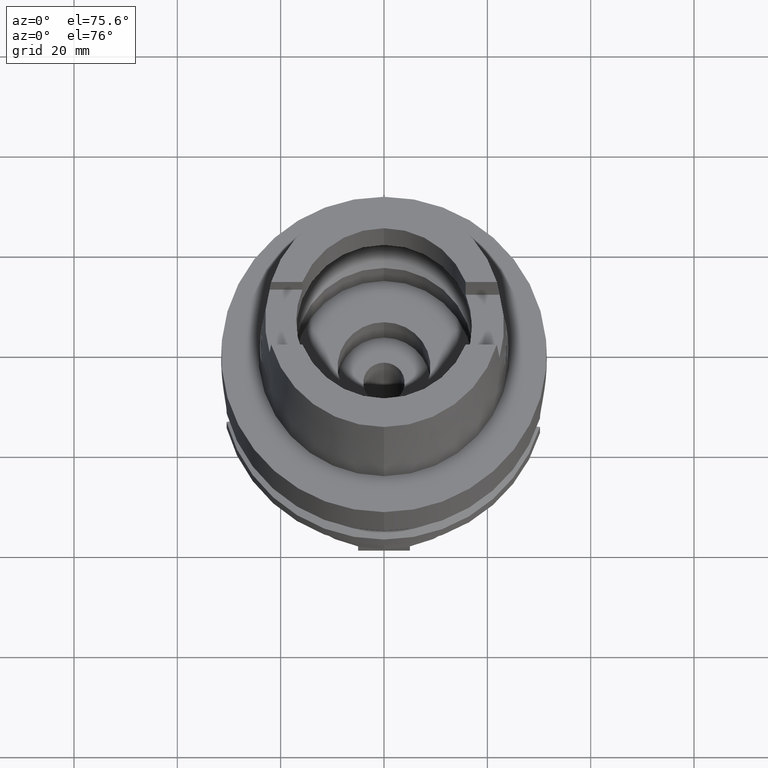
[diagram: clean part render]
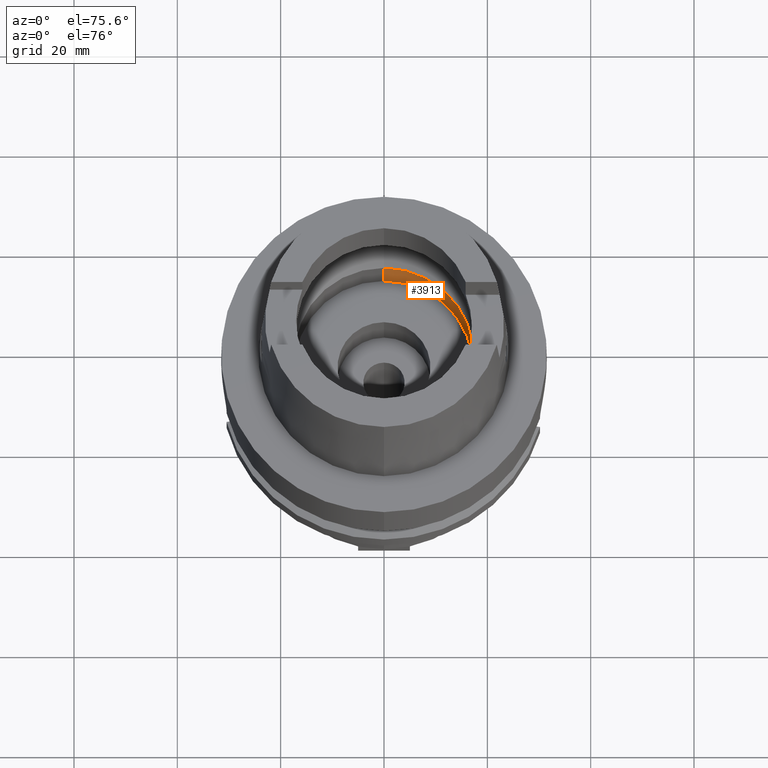
[diagram: same view with one face highlighted and labeled with its STEP entity id]
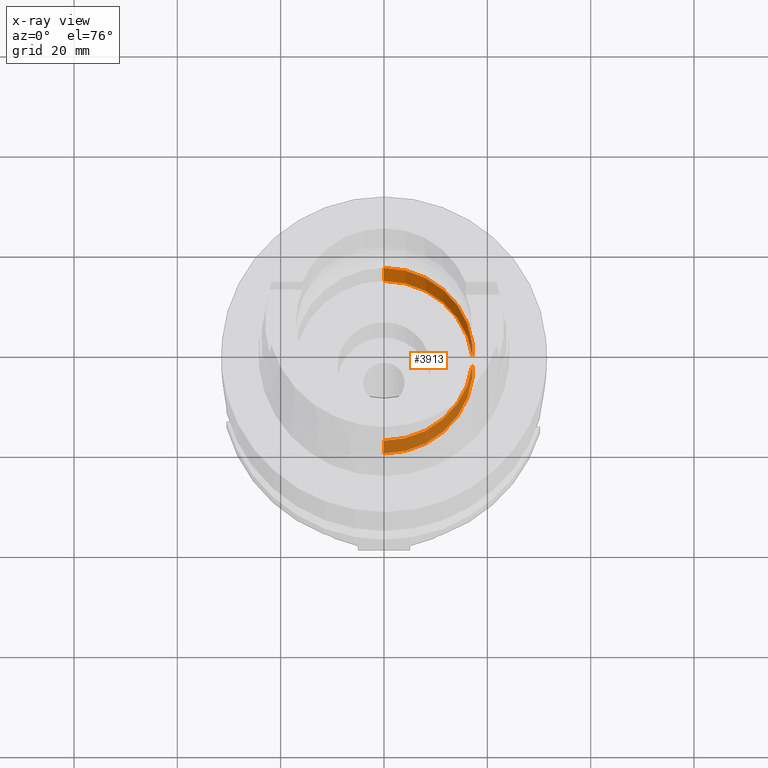
[diagram: x-ray of the same camera — body ghosted, the highlighted face saturated]
A machine part, auxiliary view. The second image highlights one B-rep face of the part: STEP entity #3913.
The next image is the same camera in x-ray: the body ghosted, the highlighted face saturated — about 51% of this face is hidden behind the body in this view.
In plain terms, the highlighted cylindrical surface (partial cylindrical patch) has radius 17.25 mm, axis along (0, 0, -1).
Its self-contained STEP definition (entity closure, byte-faithful):
#1944=CARTESIAN_POINT('',(0.E0,1.683889348828E-14,-9.95E0));
#1945=DIRECTION('',(0.E0,0.E0,-1.E0));
#1946=DIRECTION('',(0.E0,1.E0,0.E0));
#1947=AXIS2_PLACEMENT_3D('',#1944,#1945,#1946);
#1968=DIRECTION('',(0.E0,0.E0,1.E0));
#1969=VECTOR('',#1968,9.95E0);
#1970=CARTESIAN_POINT('',(0.E0,-1.725E1,-9.95E0));
#1971=LINE('',#1970,#1969);
#1983=DIRECTION('',(0.E0,0.E0,1.E0));
#1984=VECTOR('',#1983,9.95E0);
#1985=CARTESIAN_POINT('',(0.E0,1.725E1,-9.95E0));
#1986=LINE('',#1985,#1984);
#1997=CARTESIAN_POINT('',(0.E0,1.683889348828E-14,0.E0));
#1998=DIRECTION('',(0.E0,0.E0,1.E0));
#1999=DIRECTION('',(0.E0,-1.E0,0.E0));
#2000=AXIS2_PLACEMENT_3D('',#1997,#1998,#1999);
#2373=CARTESIAN_POINT('',(0.E0,-1.725E1,-9.95E0));
#2374=CARTESIAN_POINT('',(0.E0,1.725E1,-9.95E0));
#2375=VERTEX_POINT('',#2373);
#2376=VERTEX_POINT('',#2374);
#2377=CARTESIAN_POINT('',(0.E0,1.725E1,0.E0));
#2378=VERTEX_POINT('',#2377);
#2379=CARTESIAN_POINT('',(0.E0,-1.725E1,0.E0));
#2380=VERTEX_POINT('',#2379);
#3901=CARTESIAN_POINT('',(0.E0,1.683889348828E-14,3.75E1));
#3902=DIRECTION('',(0.E0,0.E0,-1.E0));
#3903=DIRECTION('',(0.E0,-1.E0,0.E0));
#3904=AXIS2_PLACEMENT_3D('',#3901,#3902,#3903);
#3905=CYLINDRICAL_SURFACE('',#3904,1.725E1);
#3906=ORIENTED_EDGE('',*,*,#3891,.T.);
#3908=ORIENTED_EDGE('',*,*,#3907,.F.);
#3909=ORIENTED_EDGE('',*,*,#3894,.F.);
#3910=ORIENTED_EDGE('',*,*,#3877,.F.);
#3911=EDGE_LOOP('',(#3906,#3908,#3909,#3910));
#3912=FACE_OUTER_BOUND('',#3911,.F.);
#1948=CIRCLE('',#1947,1.725E1);
#2001=CIRCLE('',#2000,1.725E1);
#3877=EDGE_CURVE('',#2376,#2375,#1948,.T.);
#3891=EDGE_CURVE('',#2376,#2378,#1986,.T.);
#3894=EDGE_CURVE('',#2375,#2380,#1971,.T.);
#3907=EDGE_CURVE('',#2380,#2378,#2001,.T.);
#3913=ADVANCED_FACE('',(#3912),#3905,.F.);